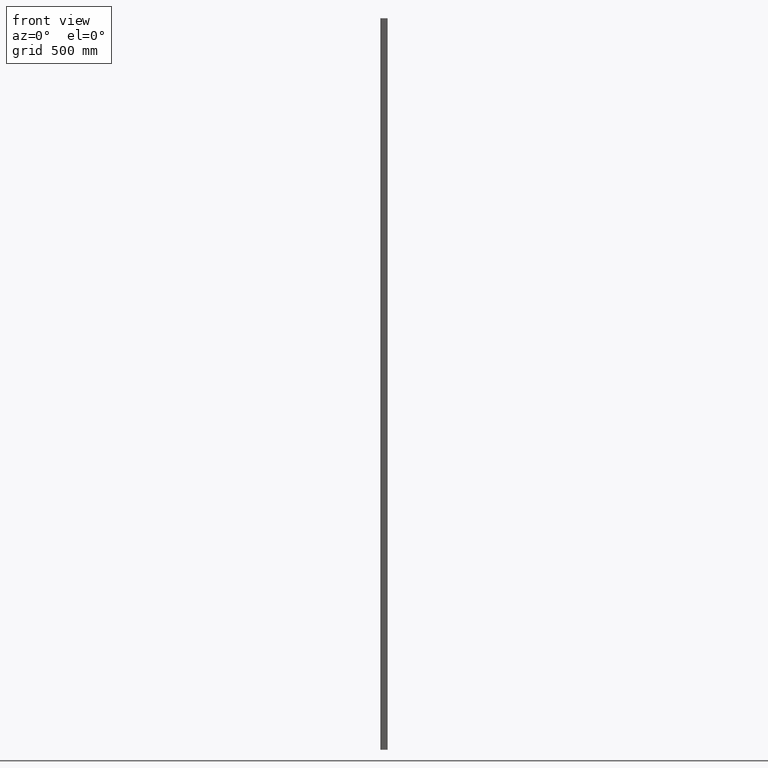
[diagram: clean part render]
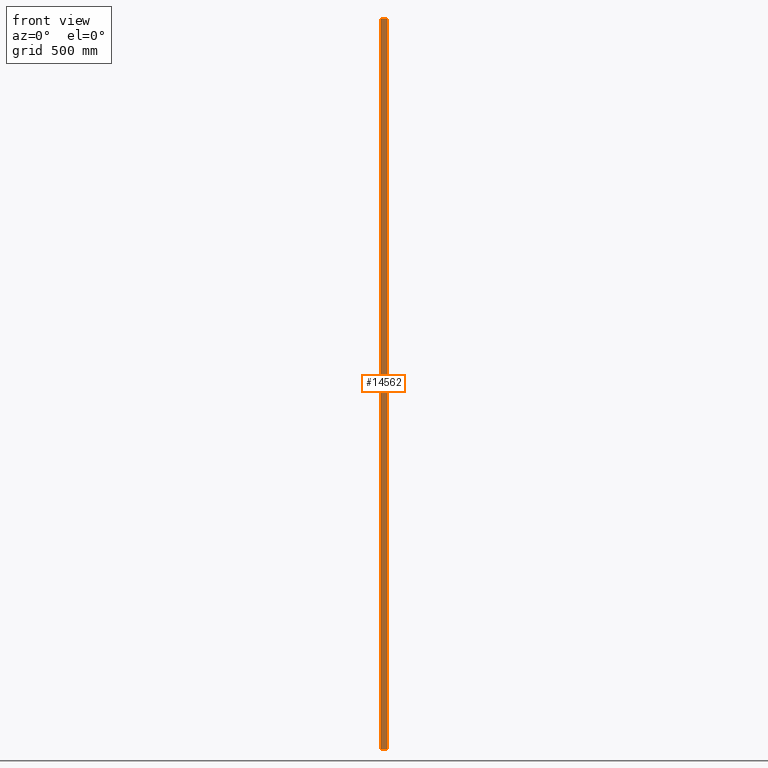
[diagram: same view with one face highlighted and labeled with its STEP entity id]
A machine part, front view. The second image highlights one B-rep face of the part: STEP entity #14562.
In plain terms, the highlighted planar face has unit normal (0, 1, 0).
Its self-contained STEP definition (entity closure, byte-faithful):
#1282 = EDGE_CURVE ( 'NONE', #2839, #3702, #10398, .T. ) ;
#1624 = LINE ( 'NONE', #8807, #2375 ) ;
#1887 = CARTESIAN_POINT ( 'NONE',  ( -12.00000000000000200, 11.00000000000000200, 1500.000000000000000 ) ) ;
#2375 = VECTOR ( 'NONE', #5325, 1000.000000000000000 ) ;
#2439 = EDGE_CURVE ( 'NONE', #3702, #6204, #1624, .T. ) ;
#2526 = CARTESIAN_POINT ( 'NONE',  ( 11.99999999999999800, 11.00000000000000200, 1500.000000000000000 ) ) ;
#2531 = DIRECTION ( 'NONE',  ( 0.0000000000000000000, -0.0000000000000000000, 1.000000000000000000 ) ) ;
#2839 = VERTEX_POINT ( 'NONE', #12607 ) ;
#3431 = VECTOR ( 'NONE', #10715, 1000.000000000000000 ) ;
#3702 = VERTEX_POINT ( 'NONE', #2526 ) ;
#3712 = VERTEX_POINT ( 'NONE', #13568 ) ;
#4038 = VECTOR ( 'NONE', #13827, 1000.000000000000000 ) ;
#4145 = EDGE_CURVE ( 'NONE', #2839, #3712, #12442, .T. ) ;
#4688 = CARTESIAN_POINT ( 'NONE',  ( -12.00000000000000200, 11.00000000000000200, -1500.000000000000000 ) ) ;
#4928 = FACE_OUTER_BOUND ( 'NONE', #8601, .T. ) ;
#4960 = PLANE ( 'NONE',  #6538 ) ;
#5006 = ORIENTED_EDGE ( 'NONE', *, *, #2439, .F. ) ;
#5325 = DIRECTION ( 'NONE',  ( -0.0000000000000000000, -0.0000000000000000000, -1.000000000000000000 ) ) ;
#6204 = VERTEX_POINT ( 'NONE', #14434 ) ;
#6538 = AXIS2_PLACEMENT_3D ( 'NONE', #14623, #9702, #2531 ) ;
#6952 = ORIENTED_EDGE ( 'NONE', *, *, #7275, .T. ) ;
#7275 = EDGE_CURVE ( 'NONE', #3712, #6204, #14580, .T. ) ;
#8601 = EDGE_LOOP ( 'NONE', ( #6952, #5006, #12000, #11777 ) ) ;
#8807 = CARTESIAN_POINT ( 'NONE',  ( 11.99999999999999800, 11.00000000000000200, 1500.000000000000000 ) ) ;
#9210 = CARTESIAN_POINT ( 'NONE',  ( -12.00000000000000200, 11.00000000000000200, 1500.000000000000000 ) ) ;
#9702 = DIRECTION ( 'NONE',  ( 0.0000000000000000000, 1.000000000000000000, 0.0000000000000000000 ) ) ;
#10398 = LINE ( 'NONE', #1887, #4038 ) ;
#10715 = DIRECTION ( 'NONE',  ( 1.000000000000000000, 0.0000000000000000000, 0.0000000000000000000 ) ) ;
#11777 = ORIENTED_EDGE ( 'NONE', *, *, #4145, .T. ) ;
#12000 = ORIENTED_EDGE ( 'NONE', *, *, #1282, .F. ) ;
#12442 = LINE ( 'NONE', #9210, #15237 ) ;
#12607 = CARTESIAN_POINT ( 'NONE',  ( -12.00000000000000200, 11.00000000000000200, 1500.000000000000000 ) ) ;
#13568 = CARTESIAN_POINT ( 'NONE',  ( -12.00000000000000200, 11.00000000000000200, -1500.000000000000000 ) ) ;
#13827 = DIRECTION ( 'NONE',  ( 1.000000000000000000, 0.0000000000000000000, 0.0000000000000000000 ) ) ;
#14434 = CARTESIAN_POINT ( 'NONE',  ( 11.99999999999999800, 11.00000000000000200, -1500.000000000000000 ) ) ;
#14562 = ADVANCED_FACE ( 'NONE', ( #4928 ), #4960, .F. ) ;
#14580 = LINE ( 'NONE', #4688, #3431 ) ;
#14623 = CARTESIAN_POINT ( 'NONE',  ( -12.00000000000000200, 11.00000000000000200, 1500.000000000000000 ) ) ;
#15011 = DIRECTION ( 'NONE',  ( -0.0000000000000000000, -0.0000000000000000000, -1.000000000000000000 ) ) ;
#15237 = VECTOR ( 'NONE', #15011, 1000.000000000000000 ) ;